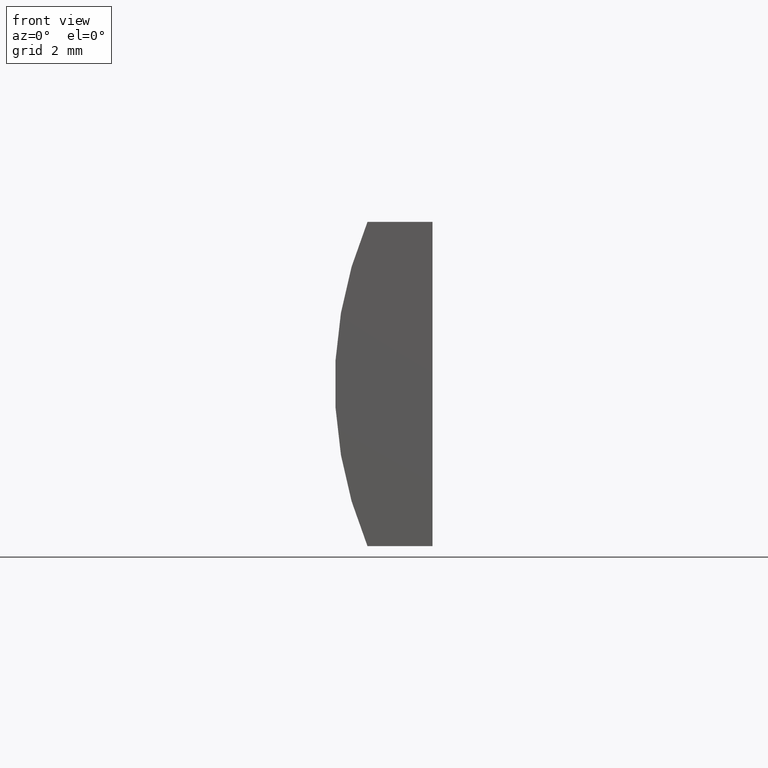
[diagram: clean part render]
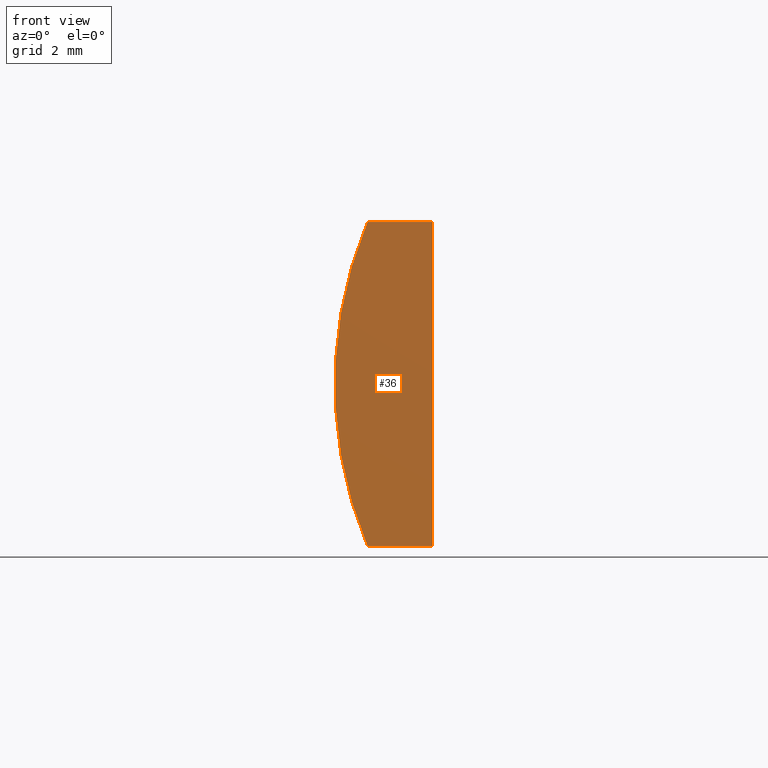
[diagram: same view with one face highlighted and labeled with its STEP entity id]
A machine part, front view. The second image highlights one B-rep face of the part: STEP entity #36.
In plain terms, the highlighted planar face has unit normal (0, 1, 0).
Its self-contained STEP definition (entity closure, byte-faithful):
#16 = DIRECTION ( 'NONE',  ( 0.0000000000000000000, 1.000000000000000000, 0.0000000000000000000 ) ) ;
#26 = VERTEX_POINT ( 'NONE', #204 ) ;
#29 = CARTESIAN_POINT ( 'NONE',  ( -7.568926660739147200, 0.0000000000000000000, 5.000000000000000000 ) ) ;
#32 = CARTESIAN_POINT ( 'NONE',  ( 4.355204334851265500, 0.0000000000000000000, 4.286263797015675000E-017 ) ) ;
#36 = ADVANCED_FACE ( 'NONE', ( #177 ), #110, .F. ) ;
#37 = LINE ( 'NONE', #112, #74 ) ;
#38 = ORIENTED_EDGE ( 'NONE', *, *, #173, .F. ) ;
#40 = CARTESIAN_POINT ( 'NONE',  ( 4.355204334851265500, 0.0000000000000000000, 4.286263797015675000E-017 ) ) ;
#54 = ORIENTED_EDGE ( 'NONE', *, *, #147, .F. ) ;
#59 = EDGE_CURVE ( 'NONE', #26, #128, #106, .T. ) ;
#60 = DIRECTION ( 'NONE',  ( -3.469446951953614200E-016, -0.0000000000000000000, -1.000000000000000000 ) ) ;
#69 = VERTEX_POINT ( 'NONE', #96 ) ;
#72 = ORIENTED_EDGE ( 'NONE', *, *, #80, .F. ) ;
#74 = VECTOR ( 'NONE', #60, 1000.000000000000000 ) ;
#80 = EDGE_CURVE ( 'NONE', #69, #26, #37, .T. ) ;
#93 = LINE ( 'NONE', #153, #159 ) ;
#96 = CARTESIAN_POINT ( 'NONE',  ( -5.564795665148733600, 0.0000000000000000000, 5.000000000000000000 ) ) ;
#101 = ORIENTED_EDGE ( 'NONE', *, *, #59, .F. ) ;
#106 = LINE ( 'NONE', #117, #176 ) ;
#110 = PLANE ( 'NONE',  #182 ) ;
#112 = CARTESIAN_POINT ( 'NONE',  ( -5.564795665148737100, 0.0000000000000000000, -5.000000000000000000 ) ) ;
#116 = DIRECTION ( 'NONE',  ( 0.0000000000000000000, -0.0000000000000000000, 1.000000000000000000 ) ) ;
#117 = CARTESIAN_POINT ( 'NONE',  ( -7.568926660739147200, 0.0000000000000000000, -5.000000000000000000 ) ) ;
#120 = AXIS2_PLACEMENT_3D ( 'NONE', #40, #16, #168 ) ;
#124 = EDGE_LOOP ( 'NONE', ( #38, #101, #72, #54 ) ) ;
#128 = VERTEX_POINT ( 'NONE', #183 ) ;
#135 = CIRCLE ( 'NONE', #120, 12.93000000000000100 ) ;
#140 = DIRECTION ( 'NONE',  ( -1.000000000000000000, -0.0000000000000000000, -0.0000000000000000000 ) ) ;
#147 = EDGE_CURVE ( 'NONE', #148, #69, #93, .T. ) ;
#148 = VERTEX_POINT ( 'NONE', #29 ) ;
#153 = CARTESIAN_POINT ( 'NONE',  ( -7.568926660739147200, 0.0000000000000000000, 5.000000000000000000 ) ) ;
#158 = DIRECTION ( 'NONE',  ( 0.0000000000000000000, 1.000000000000000000, 0.0000000000000000000 ) ) ;
#159 = VECTOR ( 'NONE', #172, 1000.000000000000000 ) ;
#168 = DIRECTION ( 'NONE',  ( 0.0000000000000000000, 0.0000000000000000000, 1.000000000000000000 ) ) ;
#172 = DIRECTION ( 'NONE',  ( 1.000000000000000000, 0.0000000000000000000, 0.0000000000000000000 ) ) ;
#173 = EDGE_CURVE ( 'NONE', #128, #148, #135, .T. ) ;
#176 = VECTOR ( 'NONE', #140, 1000.000000000000000 ) ;
#177 = FACE_OUTER_BOUND ( 'NONE', #124, .T. ) ;
#182 = AXIS2_PLACEMENT_3D ( 'NONE', #32, #158, #116 ) ;
#183 = CARTESIAN_POINT ( 'NONE',  ( -7.568926660739147200, 0.0000000000000000000, -5.000000000000000000 ) ) ;
#204 = CARTESIAN_POINT ( 'NONE',  ( -5.564795665148737100, 0.0000000000000000000, -5.000000000000000000 ) ) ;